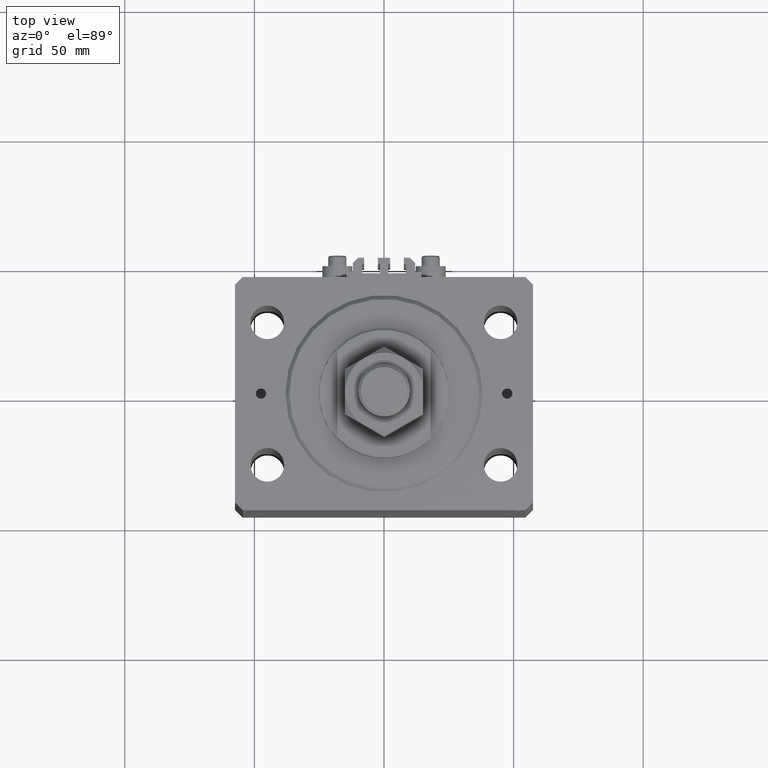
[diagram: clean part render]
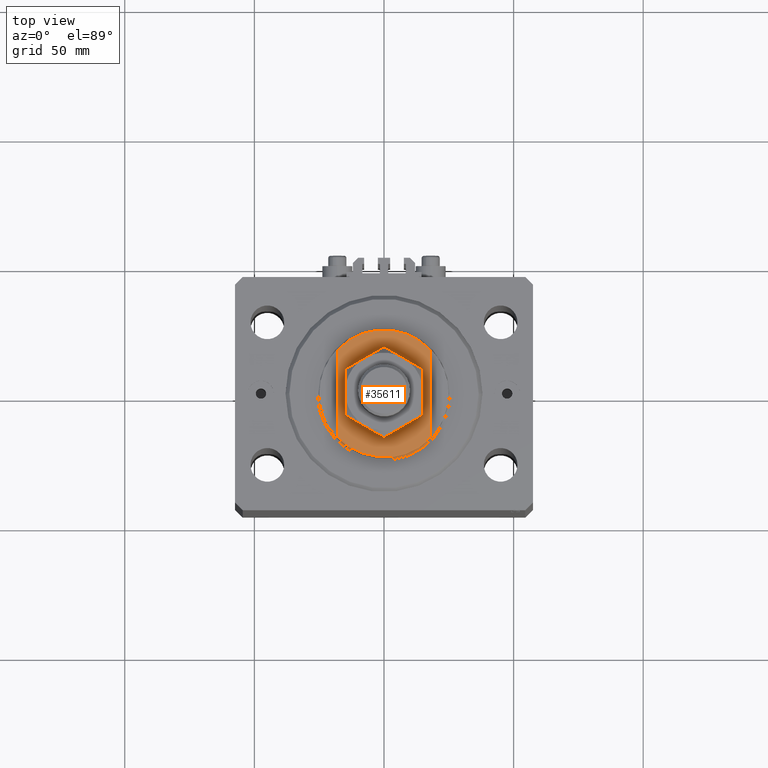
[diagram: same view with one face highlighted and labeled with its STEP entity id]
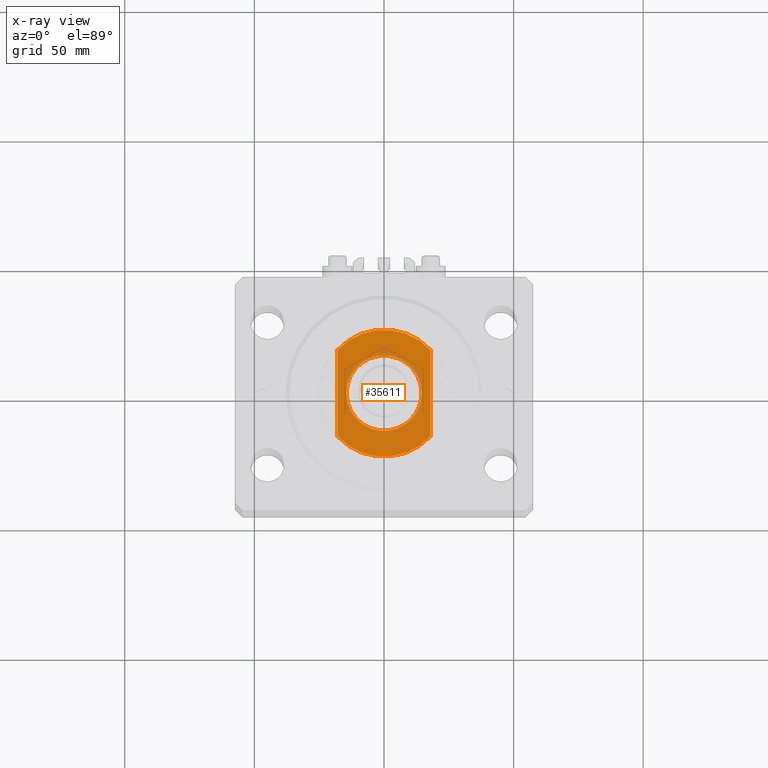
[diagram: x-ray of the same camera — body ghosted, the highlighted face saturated]
A machine part, top view. The second image highlights one B-rep face of the part: STEP entity #35611.
The next image is the same camera in x-ray: the body ghosted, the highlighted face saturated — about 14% of this face is hidden behind the body in this view.
In plain terms, the highlighted planar face has unit normal (0, 0, 1).
Its self-contained STEP definition (entity closure, byte-faithful):
#43 = ORIENTED_EDGE ( 'NONE', *, *, #37062, .F. ) ;
#517 = ORIENTED_EDGE ( 'NONE', *, *, #30747, .T. ) ;
#917 = CARTESIAN_POINT ( 'NONE',  ( 0.000000000000000000, 0.000000000000000000, -7.000000000000000000 ) ) ;
#6445 = CARTESIAN_POINT ( 'NONE',  ( 0.000000000000000000, 0.000000000000000000, -7.000000000000000000 ) ) ;
#7258 = DIRECTION ( 'NONE',  ( -0.000000000000000000, -0.000000000000000000, 1.000000000000000000 ) ) ;
#8938 = CARTESIAN_POINT ( 'NONE',  ( 18.00000000000000000, -41.24318125460256113, -7.000000000000000000 ) ) ;
#9366 = CIRCLE ( 'NONE', #39321, 14.49999999999999822 ) ;
#9384 = AXIS2_PLACEMENT_3D ( 'NONE', #917, #47056, #38690 ) ;
#9526 = ORIENTED_EDGE ( 'NONE', *, *, #46023, .T. ) ;
#10241 = DIRECTION ( 'NONE',  ( 0.000000000000000000, 0.000000000000000000, -1.000000000000000000 ) ) ;
#11016 = CARTESIAN_POINT ( 'NONE',  ( -18.00000000000000000, 16.62077013859462227, -7.000000000000000000 ) ) ;
#12292 = LINE ( 'NONE', #12528, #21281 ) ;
#12528 = CARTESIAN_POINT ( 'NONE',  ( -18.00000000000000000, -41.24318125460256113, -7.000000000000000000 ) ) ;
#13061 = ORIENTED_EDGE ( 'NONE', *, *, #21579, .T. ) ;
#13938 = EDGE_LOOP ( 'NONE', ( #38486, #517 ) ) ;
#13972 = CARTESIAN_POINT ( 'NONE',  ( -18.00000000000000000, -16.62077013859462227, -7.000000000000000000 ) ) ;
#14848 = VERTEX_POINT ( 'NONE', #29627 ) ;
#16474 = DIRECTION ( 'NONE',  ( -0.000000000000000000, -1.000000000000000000, -0.000000000000000000 ) ) ;
#19383 = FACE_OUTER_BOUND ( 'NONE', #30070, .T. ) ;
#20793 = DIRECTION ( 'NONE',  ( 0.000000000000000000, -1.000000000000000000, -0.000000000000000000 ) ) ;
#20968 = VERTEX_POINT ( 'NONE', #32068 ) ;
#21281 = VECTOR ( 'NONE', #16474, 1000.000000000000000 ) ;
#21513 = PLANE ( 'NONE',  #47275 ) ;
#21579 = EDGE_CURVE ( 'NONE', #24159, #44537, #25970, .T. ) ;
#22081 = CARTESIAN_POINT ( 'NONE',  ( 0.000000000000000000, 0.000000000000000000, -7.000000000000000000 ) ) ;
#22328 = DIRECTION ( 'NONE',  ( -1.000000000000000000, 0.000000000000000000, 0.000000000000000000 ) ) ;
#22767 = DIRECTION ( 'NONE',  ( 0.000000000000000000, 0.000000000000000000, -1.000000000000000000 ) ) ;
#22797 = CIRCLE ( 'NONE', #9384, 14.49999999999999822 ) ;
#24159 = VERTEX_POINT ( 'NONE', #41228 ) ;
#24244 = LINE ( 'NONE', #8938, #38928 ) ;
#24606 = AXIS2_PLACEMENT_3D ( 'NONE', #44062, #10241, #33917 ) ;
#25970 = CIRCLE ( 'NONE', #36182, 24.49999999999996803 ) ;
#27285 = VERTEX_POINT ( 'NONE', #11016 ) ;
#28595 = EDGE_CURVE ( 'NONE', #20968, #37678, #9366, .T. ) ;
#29627 = CARTESIAN_POINT ( 'NONE',  ( 18.00000000000000000, 16.62077013859462227, -7.000000000000000000 ) ) ;
#30070 = EDGE_LOOP ( 'NONE', ( #32864, #9526, #13061, #43 ) ) ;
#30406 = DIRECTION ( 'NONE',  ( -1.000000000000000000, 0.000000000000000000, 0.000000000000000000 ) ) ;
#30747 = EDGE_CURVE ( 'NONE', #37678, #20968, #22797, .T. ) ;
#32068 = CARTESIAN_POINT ( 'NONE',  ( -14.49999999999999822, 0.000000000000000000, -7.000000000000000000 ) ) ;
#32612 = DIRECTION ( 'NONE',  ( 0.000000000000000000, 0.000000000000000000, -1.000000000000000000 ) ) ;
#32864 = ORIENTED_EDGE ( 'NONE', *, *, #42701, .T. ) ;
#33285 = CIRCLE ( 'NONE', #24606, 24.49999999999996803 ) ;
#33917 = DIRECTION ( 'NONE',  ( -1.000000000000000000, 0.000000000000000000, 0.000000000000000000 ) ) ;
#34353 = CARTESIAN_POINT ( 'NONE',  ( 0.000000000000000000, 0.000000000000000000, -7.000000000000000000 ) ) ;
#35590 = CARTESIAN_POINT ( 'NONE',  ( 14.49999999999999822, 1.775737858763662015E-15, -7.000000000000000000 ) ) ;
#35611 = ADVANCED_FACE ( 'NONE', ( #38143, #19383 ), #21513, .T. ) ;
#36182 = AXIS2_PLACEMENT_3D ( 'NONE', #34353, #22767, #30406 ) ;
#36805 = DIRECTION ( 'NONE',  ( -1.000000000000000000, 0.000000000000000000, -0.000000000000000000 ) ) ;
#37062 = EDGE_CURVE ( 'NONE', #27285, #44537, #12292, .T. ) ;
#37678 = VERTEX_POINT ( 'NONE', #35590 ) ;
#38143 = FACE_BOUND ( 'NONE', #13938, .T. ) ;
#38486 = ORIENTED_EDGE ( 'NONE', *, *, #28595, .T. ) ;
#38690 = DIRECTION ( 'NONE',  ( -1.000000000000000000, 0.000000000000000000, 0.000000000000000000 ) ) ;
#38928 = VECTOR ( 'NONE', #20793, 1000.000000000000000 ) ;
#39321 = AXIS2_PLACEMENT_3D ( 'NONE', #22081, #7258, #22328 ) ;
#41228 = CARTESIAN_POINT ( 'NONE',  ( 18.00000000000000000, -16.62077013859462227, -7.000000000000000000 ) ) ;
#42701 = EDGE_CURVE ( 'NONE', #27285, #14848, #33285, .T. ) ;
#44062 = CARTESIAN_POINT ( 'NONE',  ( 0.000000000000000000, 0.000000000000000000, -7.000000000000000000 ) ) ;
#44537 = VERTEX_POINT ( 'NONE', #13972 ) ;
#46023 = EDGE_CURVE ( 'NONE', #14848, #24159, #24244, .T. ) ;
#47056 = DIRECTION ( 'NONE',  ( -0.000000000000000000, -0.000000000000000000, 1.000000000000000000 ) ) ;
#47275 = AXIS2_PLACEMENT_3D ( 'NONE', #6445, #32612, #36805 ) ;